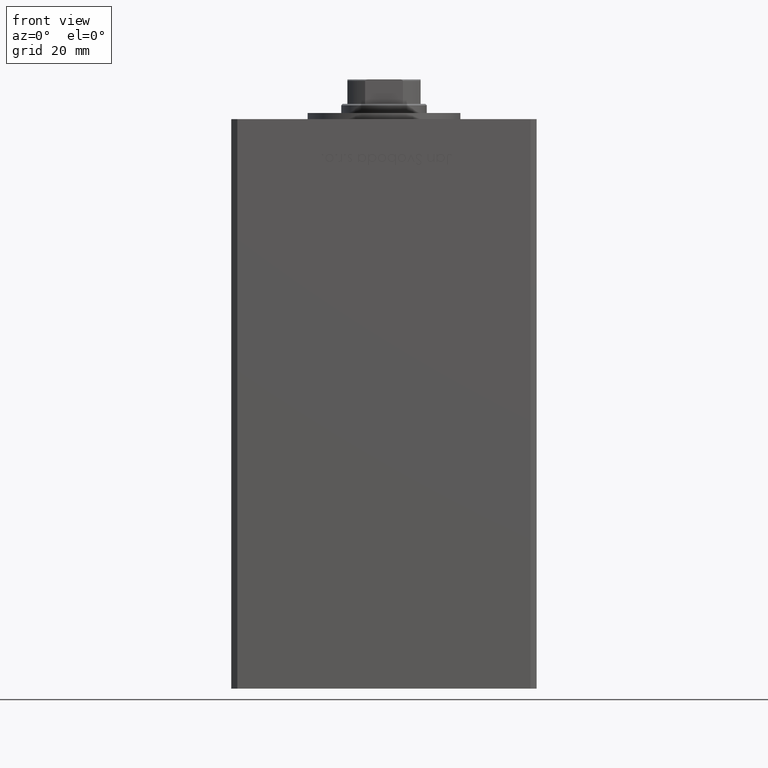
[diagram: clean part render]
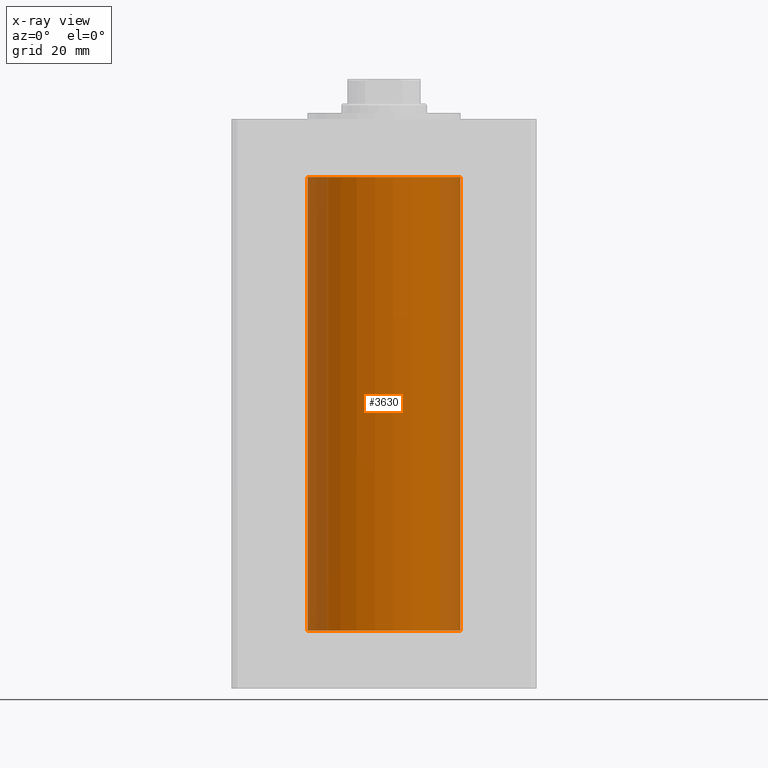
[diagram: x-ray — body ghosted, one internal face saturated and labeled with its STEP entity id]
A machine part, front view, then the same camera in x-ray: the body is ghosted and one INTERNAL B-rep face — a face not visible from any outside direction — is saturated and labeled: STEP entity #3630.
In plain terms, the highlighted cylindrical surface (partial cylindrical patch) has radius 25 mm, axis along (-0, -0, -1).
Its self-contained STEP definition (entity closure, byte-faithful):
#1585 = VERTEX_POINT ( 'NONE', #29036 ) ;
#2169 = LINE ( 'NONE', #29876, #5142 ) ;
#3630 = ADVANCED_FACE ( 'NONE', ( #31111 ), #47491, .F. ) ;
#5136 = AXIS2_PLACEMENT_3D ( 'NONE', #37244, #33542, #25890 ) ;
#5142 = VECTOR ( 'NONE', #34344, 1000.000000000000000 ) ;
#7576 = VERTEX_POINT ( 'NONE', #12260 ) ;
#7815 = EDGE_CURVE ( 'NONE', #28735, #7576, #29909, .T. ) ;
#10123 = DIRECTION ( 'NONE',  ( -0.000000000000000000, -0.000000000000000000, -1.000000000000000000 ) ) ;
#10326 = DIRECTION ( 'NONE',  ( 1.000000000000000000, 0.000000000000000000, 0.000000000000000000 ) ) ;
#12260 = CARTESIAN_POINT ( 'NONE',  ( 25.00000000000000000, 3.061616997868383043E-15, 0.000000000000000000 ) ) ;
#13407 = ORIENTED_EDGE ( 'NONE', *, *, #15670, .T. ) ;
#13997 = DIRECTION ( 'NONE',  ( -0.000000000000000000, 0.000000000000000000, 1.000000000000000000 ) ) ;
#15227 = ORIENTED_EDGE ( 'NONE', *, *, #46685, .F. ) ;
#15280 = DIRECTION ( 'NONE',  ( -1.000000000000000000, 0.000000000000000000, 0.000000000000000000 ) ) ;
#15670 = EDGE_CURVE ( 'NONE', #1585, #28735, #15966, .T. ) ;
#15966 = CIRCLE ( 'NONE', #20182, 25.00000000000000000 ) ;
#20182 = AXIS2_PLACEMENT_3D ( 'NONE', #22445, #13997, #10326 ) ;
#22445 = CARTESIAN_POINT ( 'NONE',  ( 0.000000000000000000, 0.000000000000000000, 148.5000000000000000 ) ) ;
#23960 = DIRECTION ( 'NONE',  ( -0.000000000000000000, -0.000000000000000000, -1.000000000000000000 ) ) ;
#25535 = EDGE_LOOP ( 'NONE', ( #13407, #42788, #15227, #32495 ) ) ;
#25543 = CARTESIAN_POINT ( 'NONE',  ( 25.00000000000000000, 3.061616997868383043E-15, 148.5000000000000000 ) ) ;
#25890 = DIRECTION ( 'NONE',  ( 1.000000000000000000, 0.000000000000000000, 0.000000000000000000 ) ) ;
#28735 = VERTEX_POINT ( 'NONE', #25543 ) ;
#29036 = CARTESIAN_POINT ( 'NONE',  ( -25.00000000000000000, 0.000000000000000000, 148.5000000000000000 ) ) ;
#29876 = CARTESIAN_POINT ( 'NONE',  ( -25.00000000000000000, 0.000000000000000000, 148.5000000000000000 ) ) ;
#29909 = LINE ( 'NONE', #34378, #42734 ) ;
#31111 = FACE_OUTER_BOUND ( 'NONE', #25535, .T. ) ;
#32495 = ORIENTED_EDGE ( 'NONE', *, *, #42801, .F. ) ;
#33542 = DIRECTION ( 'NONE',  ( -0.000000000000000000, 0.000000000000000000, 1.000000000000000000 ) ) ;
#34344 = DIRECTION ( 'NONE',  ( -0.000000000000000000, -0.000000000000000000, -1.000000000000000000 ) ) ;
#34378 = CARTESIAN_POINT ( 'NONE',  ( 25.00000000000000000, 3.061616997868383043E-15, 148.5000000000000000 ) ) ;
#37244 = CARTESIAN_POINT ( 'NONE',  ( 0.000000000000000000, 0.000000000000000000, 0.000000000000000000 ) ) ;
#42734 = VECTOR ( 'NONE', #10123, 1000.000000000000000 ) ;
#42788 = ORIENTED_EDGE ( 'NONE', *, *, #7815, .T. ) ;
#42801 = EDGE_CURVE ( 'NONE', #1585, #50651, #2169, .T. ) ;
#43839 = AXIS2_PLACEMENT_3D ( 'NONE', #51691, #23960, #15280 ) ;
#46180 = CARTESIAN_POINT ( 'NONE',  ( -25.00000000000000000, 0.000000000000000000, 0.000000000000000000 ) ) ;
#46685 = EDGE_CURVE ( 'NONE', #50651, #7576, #47231, .T. ) ;
#47231 = CIRCLE ( 'NONE', #5136, 25.00000000000000000 ) ;
#47491 = CYLINDRICAL_SURFACE ( 'NONE', #43839, 25.00000000000000000 ) ;
#50651 = VERTEX_POINT ( 'NONE', #46180 ) ;
#51691 = CARTESIAN_POINT ( 'NONE',  ( 0.000000000000000000, 0.000000000000000000, 148.5000000000000000 ) ) ;